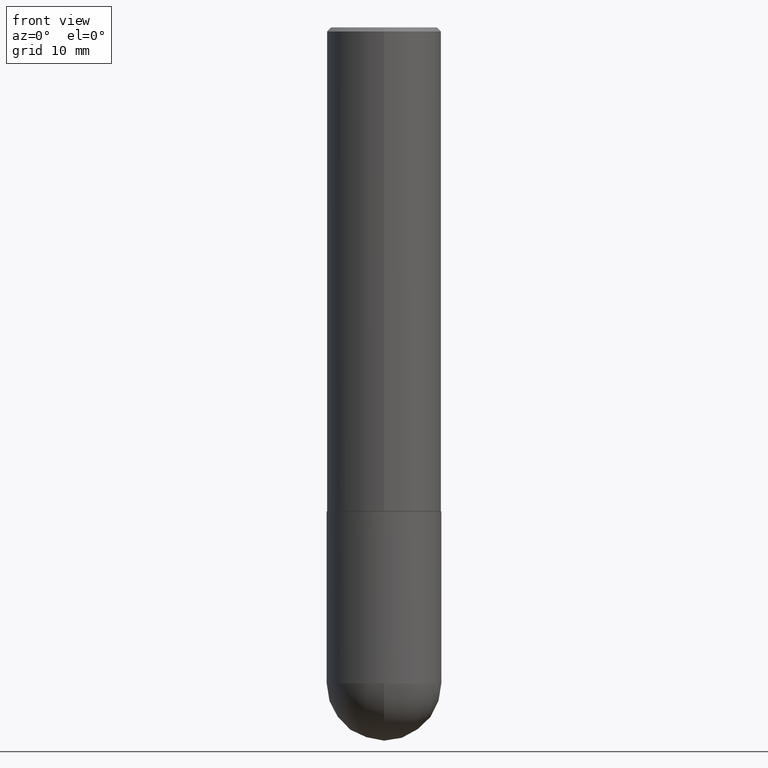
[diagram: clean part render]
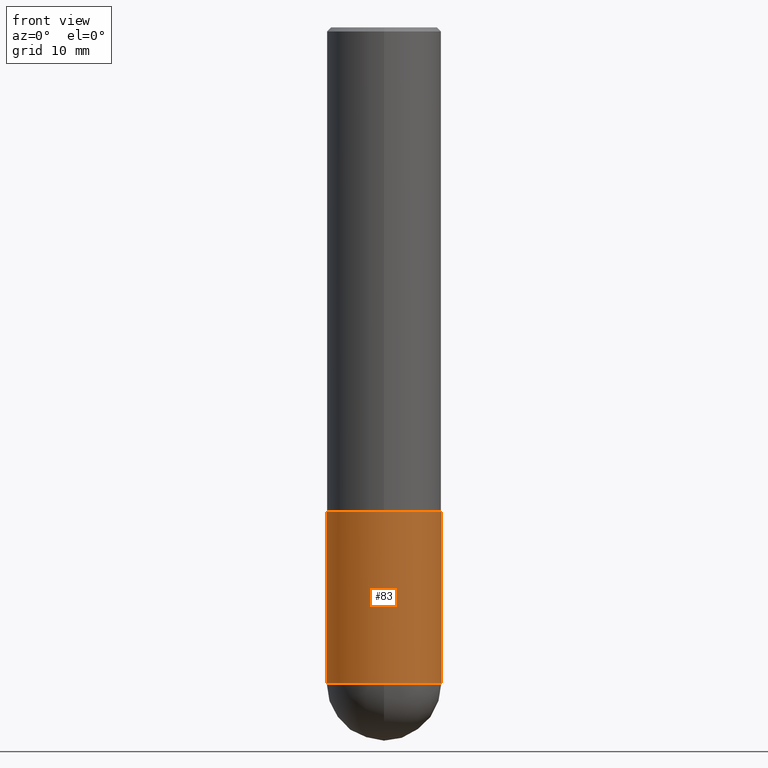
[diagram: same view with one face highlighted and labeled with its STEP entity id]
A machine part, front view. The second image highlights one B-rep face of the part: STEP entity #83.
In plain terms, the highlighted cylindrical surface (partial cylindrical patch) has radius 7.1438 mm, axis along (-0, 0, 1).
Its self-contained STEP definition (entity closure, byte-faithful):
#1 = LINE ( 'NONE', #261, #167 ) ;
#28 = DIRECTION ( 'NONE',  ( -2.445468806185136877E-29, 3.491481338843145188E-15, 1.000000000000000000 ) ) ;
#55 = DIRECTION ( 'NONE',  ( 1.000000000000000000, -6.982962677686266711E-15, 4.876176775795935232E-29 ) ) ;
#56 = CIRCLE ( 'NONE', #103, 0.2812500000000000000 ) ;
#61 = VECTOR ( 'NONE', #28, 39.37007874015748143 ) ;
#68 = EDGE_CURVE ( 'NONE', #291, #356, #86, .T. ) ;
#79 = AXIS2_PLACEMENT_3D ( 'NONE', #114, #148, #55 ) ;
#83 = ADVANCED_FACE ( 'NONE', ( #206 ), #396, .T. ) ;
#86 = LINE ( 'NONE', #335, #61 ) ;
#93 = DIRECTION ( 'NONE',  ( 1.000000000000000000, -6.982962677686268288E-15, 0.000000000000000000 ) ) ;
#94 = CIRCLE ( 'NONE', #287, 0.2812500000000000555 ) ;
#99 = CARTESIAN_POINT ( 'NONE',  ( -0.2812500000000000000, -7.766835425251639371E-15, -2.374999999999999556 ) ) ;
#101 = EDGE_CURVE ( 'NONE', #291, #226, #185, .T. ) ;
#103 = AXIS2_PLACEMENT_3D ( 'NONE', #397, #191, #132 ) ;
#106 = ORIENTED_EDGE ( 'NONE', *, *, #310, .T. ) ;
#107 = VERTEX_POINT ( 'NONE', #279 ) ;
#114 = CARTESIAN_POINT ( 'NONE',  ( 0.000000000000000000, 0.000000000000000000, 0.000000000000000000 ) ) ;
#118 = DIRECTION ( 'NONE',  ( 1.000000000000000000, -6.982962677686268288E-15, 0.000000000000000000 ) ) ;
#124 = DIRECTION ( 'NONE',  ( -2.445468806185136877E-29, 3.491481338843145188E-15, 1.000000000000000000 ) ) ;
#132 = DIRECTION ( 'NONE',  ( 1.000000000000000000, -6.982962677686266711E-15, 0.000000000000000000 ) ) ;
#146 = DIRECTION ( 'NONE',  ( -2.445468806185136597E-29, 3.491481338843145583E-15, 1.000000000000000000 ) ) ;
#148 = DIRECTION ( 'NONE',  ( -2.445468806185136597E-29, 3.491481338843145583E-15, 1.000000000000000000 ) ) ;
#154 = CARTESIAN_POINT ( 'NONE',  ( -0.2812500000000000555, -7.766835425251640949E-15, -3.218749999999999556 ) ) ;
#167 = VECTOR ( 'NONE', #124, 39.37007874015748143 ) ;
#183 = CARTESIAN_POINT ( 'NONE',  ( 7.871352719908407300E-29, -1.123820555940137375E-14, -3.218749999999999556 ) ) ;
#185 = CIRCLE ( 'NONE', #352, 0.2812500000000000555 ) ;
#191 = DIRECTION ( 'NONE',  ( -2.445468806185136597E-29, 3.491481338843145583E-15, 1.000000000000000000 ) ) ;
#206 = FACE_OUTER_BOUND ( 'NONE', #394, .T. ) ;
#208 = EDGE_CURVE ( 'NONE', #356, #107, #56, .T. ) ;
#226 = VERTEX_POINT ( 'NONE', #242 ) ;
#228 = VERTEX_POINT ( 'NONE', #333 ) ;
#242 = CARTESIAN_POINT ( 'NONE',  ( -1.998401444325206042E-15, -0.2812500000000116573, -3.218749999999998668 ) ) ;
#261 = CARTESIAN_POINT ( 'NONE',  ( 0.2812500000000000555, -1.963958253099262907E-15, 1.371424718192607012E-29 ) ) ;
#264 = DIRECTION ( 'NONE',  ( -2.445468806185136597E-29, 3.491481338843145583E-15, 1.000000000000000000 ) ) ;
#279 = CARTESIAN_POINT ( 'NONE',  ( 0.2812500000000000000, -1.025622643285173184E-14, -2.374999999999999556 ) ) ;
#287 = AXIS2_PLACEMENT_3D ( 'NONE', #183, #264, #93 ) ;
#291 = VERTEX_POINT ( 'NONE', #154 ) ;
#295 = ORIENTED_EDGE ( 'NONE', *, *, #208, .F. ) ;
#301 = ORIENTED_EDGE ( 'NONE', *, *, #68, .F. ) ;
#310 = EDGE_CURVE ( 'NONE', #226, #228, #94, .T. ) ;
#333 = CARTESIAN_POINT ( 'NONE',  ( 0.2812500000000000555, -1.172919512267618602E-14, -3.218749999999999556 ) ) ;
#335 = CARTESIAN_POINT ( 'NONE',  ( -0.2812500000000000555, 1.998401444325282167E-15, -1.383450494134192269E-29 ) ) ;
#337 = EDGE_CURVE ( 'NONE', #228, #107, #1, .T. ) ;
#352 = AXIS2_PLACEMENT_3D ( 'NONE', #360, #146, #118 ) ;
#355 = ORIENTED_EDGE ( 'NONE', *, *, #337, .T. ) ;
#356 = VERTEX_POINT ( 'NONE', #99 ) ;
#360 = CARTESIAN_POINT ( 'NONE',  ( 7.871352719908407300E-29, -1.123820555940137375E-14, -3.218749999999999556 ) ) ;
#385 = ORIENTED_EDGE ( 'NONE', *, *, #101, .T. ) ;
#394 = EDGE_LOOP ( 'NONE', ( #301, #385, #106, #355, #295 ) ) ;
#396 = CYLINDRICAL_SURFACE ( 'NONE', #79, 0.2812500000000000555 ) ;
#397 = CARTESIAN_POINT ( 'NONE',  ( 5.807988414689698296E-29, -8.292268179752468540E-15, -2.374999999999999556 ) ) ;